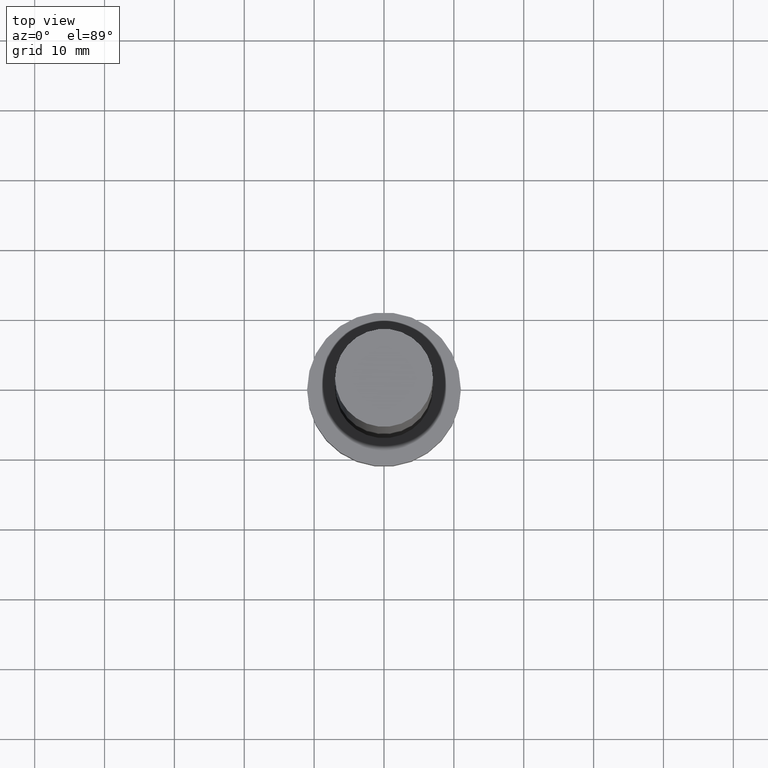
[diagram: clean part render]
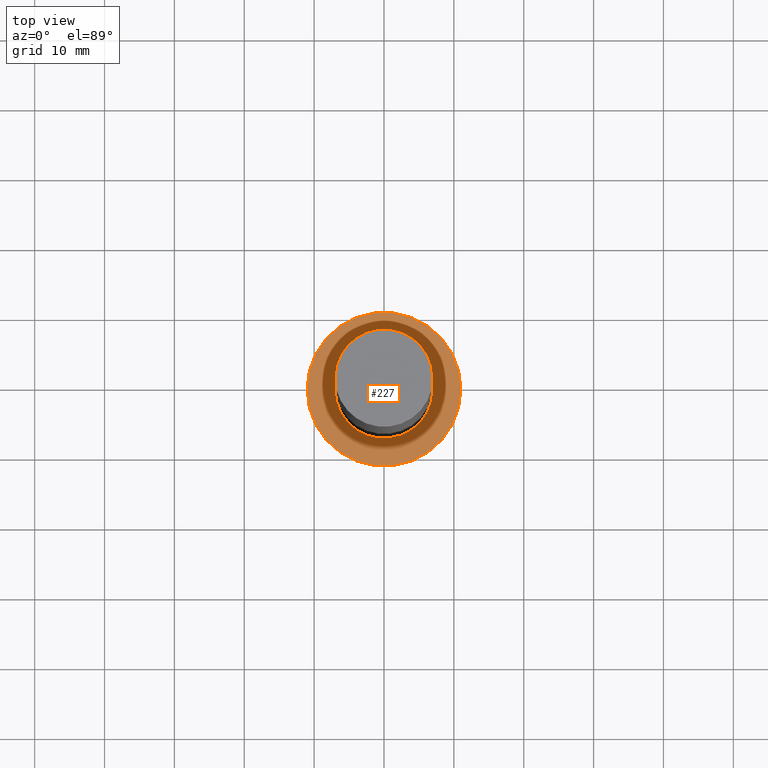
[diagram: same view with one face highlighted and labeled with its STEP entity id]
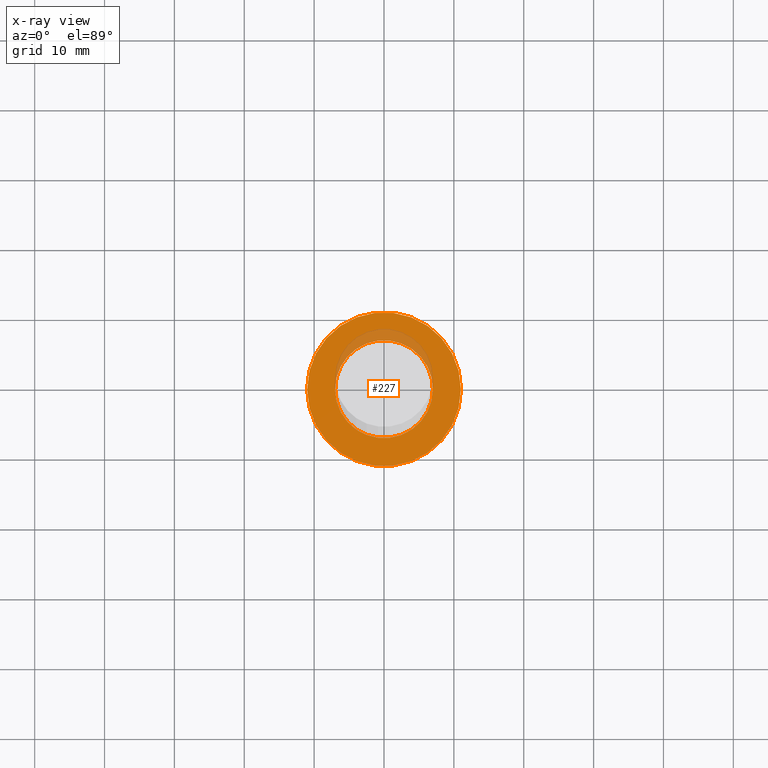
[diagram: x-ray of the same camera — body ghosted, the highlighted face saturated]
A machine part, top view. The second image highlights one B-rep face of the part: STEP entity #227.
The next image is the same camera in x-ray: the body ghosted, the highlighted face saturated — about 10% of this face is hidden behind the body in this view.
In plain terms, the highlighted planar face has unit normal (0, 0, 1).
Its self-contained STEP definition (entity closure, byte-faithful):
#1 = CARTESIAN_POINT ( 'NONE',  ( 11.00000000000000000, 1.347111479062088405E-15, 7.000000000000000000 ) ) ;
#8 = CIRCLE ( 'NONE', #152, 7.000000000000000888 ) ;
#10 = DIRECTION ( 'NONE',  ( 1.000000000000000000, 0.000000000000000000, 0.000000000000000000 ) ) ;
#13 = EDGE_CURVE ( 'NONE', #150, #135, #188, .T. ) ;
#19 = EDGE_CURVE ( 'NONE', #26, #49, #148, .T. ) ;
#26 = VERTEX_POINT ( 'NONE', #190 ) ;
#27 = CARTESIAN_POINT ( 'NONE',  ( 0.000000000000000000, 0.000000000000000000, 7.000000000000000000 ) ) ;
#35 = ORIENTED_EDGE ( 'NONE', *, *, #13, .T. ) ;
#38 = CIRCLE ( 'NONE', #213, 11.00000000000000000 ) ;
#49 = VERTEX_POINT ( 'NONE', #191 ) ;
#50 = CARTESIAN_POINT ( 'NONE',  ( 0.000000000000000000, 0.000000000000000000, 7.000000000000000000 ) ) ;
#57 = FACE_BOUND ( 'NONE', #72, .T. ) ;
#69 = DIRECTION ( 'NONE',  ( 1.000000000000000000, 0.000000000000000000, 0.000000000000000000 ) ) ;
#72 = EDGE_LOOP ( 'NONE', ( #109, #252 ) ) ;
#85 = AXIS2_PLACEMENT_3D ( 'NONE', #169, #254, #255 ) ;
#96 = AXIS2_PLACEMENT_3D ( 'NONE', #50, #116, #10 ) ;
#98 = PLANE ( 'NONE',  #159 ) ;
#109 = ORIENTED_EDGE ( 'NONE', *, *, #122, .F. ) ;
#116 = DIRECTION ( 'NONE',  ( 0.000000000000000000, 0.000000000000000000, 1.000000000000000000 ) ) ;
#121 = DIRECTION ( 'NONE',  ( 0.000000000000000000, 0.000000000000000000, 1.000000000000000000 ) ) ;
#122 = EDGE_CURVE ( 'NONE', #49, #26, #8, .T. ) ;
#127 = EDGE_CURVE ( 'NONE', #135, #150, #38, .T. ) ;
#129 = ORIENTED_EDGE ( 'NONE', *, *, #127, .T. ) ;
#131 = CARTESIAN_POINT ( 'NONE',  ( 0.000000000000000000, 0.000000000000000000, 7.000000000000000000 ) ) ;
#135 = VERTEX_POINT ( 'NONE', #138 ) ;
#138 = CARTESIAN_POINT ( 'NONE',  ( -11.00000000000000000, 0.000000000000000000, 7.000000000000000000 ) ) ;
#148 = CIRCLE ( 'NONE', #96, 7.000000000000000888 ) ;
#150 = VERTEX_POINT ( 'NONE', #1 ) ;
#152 = AXIS2_PLACEMENT_3D ( 'NONE', #131, #251, #204 ) ;
#159 = AXIS2_PLACEMENT_3D ( 'NONE', #176, #121, #215 ) ;
#169 = CARTESIAN_POINT ( 'NONE',  ( 0.000000000000000000, 0.000000000000000000, 7.000000000000000000 ) ) ;
#176 = CARTESIAN_POINT ( 'NONE',  ( 0.000000000000000000, 0.000000000000000000, 7.000000000000000000 ) ) ;
#179 = FACE_OUTER_BOUND ( 'NONE', #225, .T. ) ;
#188 = CIRCLE ( 'NONE', #85, 11.00000000000000000 ) ;
#190 = CARTESIAN_POINT ( 'NONE',  ( 7.000000000000000888, 8.572527594031472204E-16, 7.000000000000000000 ) ) ;
#191 = CARTESIAN_POINT ( 'NONE',  ( -7.000000000000000888, 0.000000000000000000, 7.000000000000000000 ) ) ;
#204 = DIRECTION ( 'NONE',  ( 1.000000000000000000, 0.000000000000000000, 0.000000000000000000 ) ) ;
#213 = AXIS2_PLACEMENT_3D ( 'NONE', #27, #229, #69 ) ;
#215 = DIRECTION ( 'NONE',  ( 1.000000000000000000, 0.000000000000000000, -0.000000000000000000 ) ) ;
#225 = EDGE_LOOP ( 'NONE', ( #129, #35 ) ) ;
#227 = ADVANCED_FACE ( 'NONE', ( #57, #179 ), #98, .T. ) ;
#229 = DIRECTION ( 'NONE',  ( 0.000000000000000000, 0.000000000000000000, 1.000000000000000000 ) ) ;
#251 = DIRECTION ( 'NONE',  ( 0.000000000000000000, 0.000000000000000000, 1.000000000000000000 ) ) ;
#252 = ORIENTED_EDGE ( 'NONE', *, *, #19, .F. ) ;
#254 = DIRECTION ( 'NONE',  ( 0.000000000000000000, 0.000000000000000000, 1.000000000000000000 ) ) ;
#255 = DIRECTION ( 'NONE',  ( 1.000000000000000000, 0.000000000000000000, 0.000000000000000000 ) ) ;